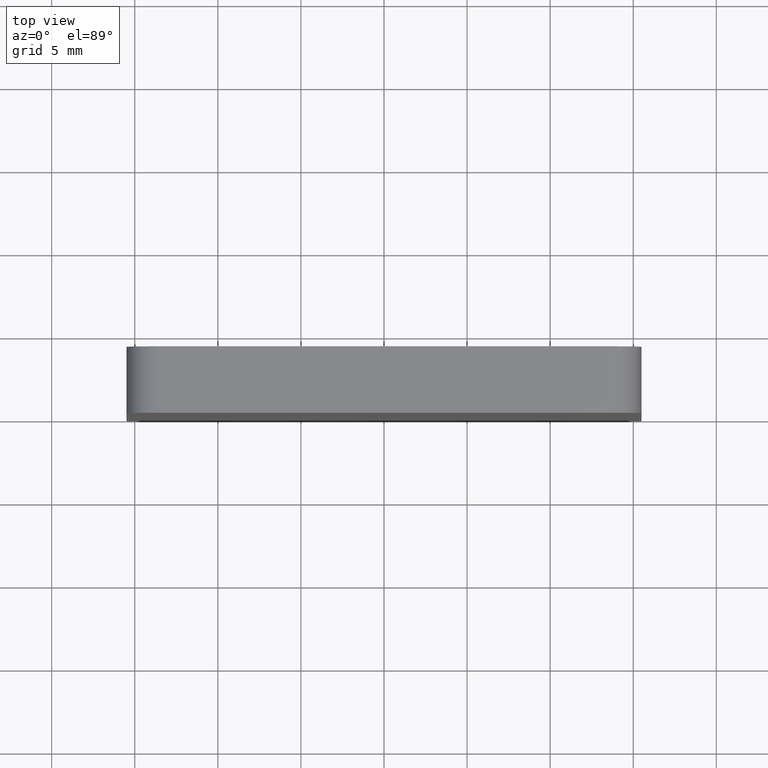
[diagram: clean part render]
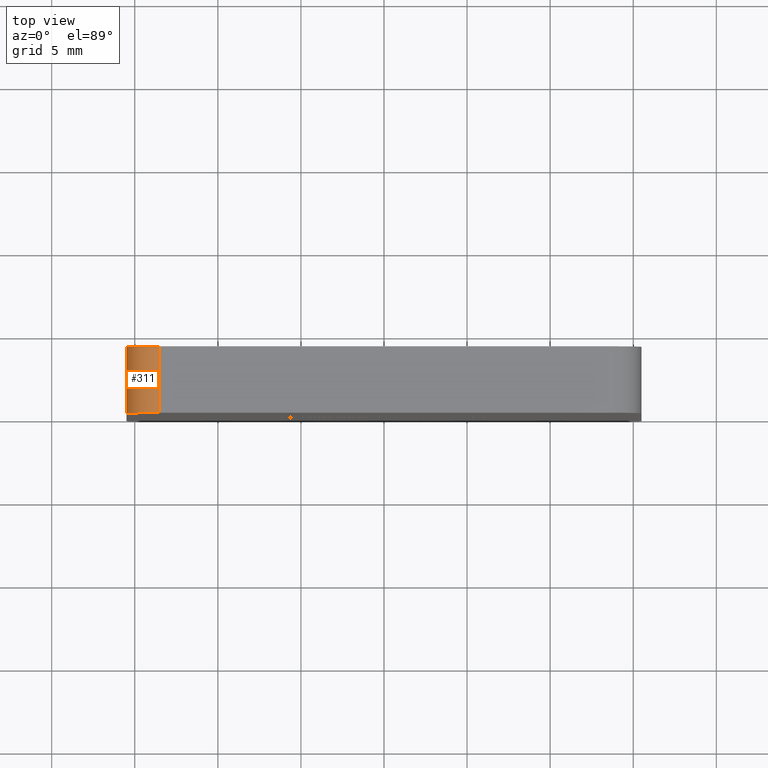
[diagram: same view with one face highlighted and labeled with its STEP entity id]
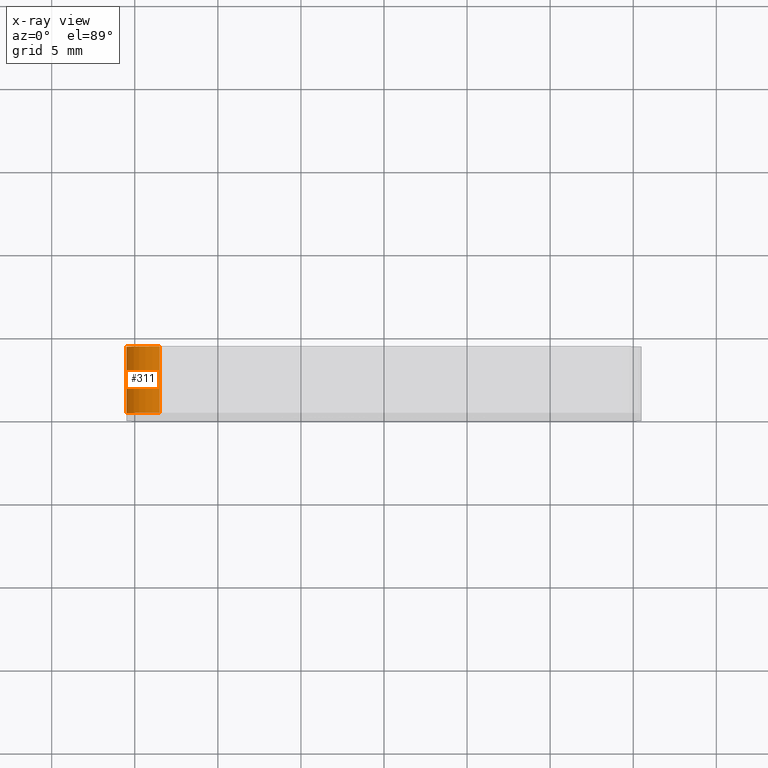
[diagram: x-ray of the same camera — body ghosted, the highlighted face saturated]
A machine part, top view. The second image highlights one B-rep face of the part: STEP entity #311.
The next image is the same camera in x-ray: the body ghosted, the highlighted face saturated — about 0% of this face is hidden behind the body in this view.
In plain terms, the highlighted cylindrical surface (edge-blend (fillet) strip) has radius 2 mm, axis along (0, -1, 0).
Its self-contained STEP definition (entity closure, byte-faithful):
#311 = ADVANCED_FACE ( 'NONE', ( #11861 ), #6643, .T. ) ;
#1104 = DIRECTION ( 'NONE',  ( 0.000000000000000000, 0.000000000000000000, -1.000000000000000000 ) ) ;
#2070 = EDGE_LOOP ( 'NONE', ( #10430, #13200, #14101, #3839 ) ) ;
#3083 = AXIS2_PLACEMENT_3D ( 'NONE', #14092, #12752, #3601 ) ;
#3302 = LINE ( 'NONE', #3679, #7355 ) ;
#3601 = DIRECTION ( 'NONE',  ( 0.000000000000000000, 0.000000000000000000, 1.000000000000000000 ) ) ;
#3679 = CARTESIAN_POINT ( 'NONE',  ( -13.49999999999999467, 4.000000000000000000, 15.50000000000000355 ) ) ;
#3839 = ORIENTED_EDGE ( 'NONE', *, *, #11516, .F. ) ;
#4610 = CARTESIAN_POINT ( 'NONE',  ( -13.49999999999999467, 0.000000000000000000, 15.50000000000000355 ) ) ;
#4989 = CARTESIAN_POINT ( 'NONE',  ( -13.49999999999999467, 4.000000000000000000, 13.50000000000000355 ) ) ;
#6272 = DIRECTION ( 'NONE',  ( 0.000000000000000000, 1.000000000000000000, 0.000000000000000000 ) ) ;
#6287 = DIRECTION ( 'NONE',  ( 0.000000000000000000, -1.000000000000000000, 0.000000000000000000 ) ) ;
#6324 = DIRECTION ( 'NONE',  ( 0.000000000000000000, 0.000000000000000000, 1.000000000000000000 ) ) ;
#6381 = CARTESIAN_POINT ( 'NONE',  ( -13.49999999999999467, 4.000000000000000000, 13.50000000000000355 ) ) ;
#6386 = CARTESIAN_POINT ( 'NONE',  ( -15.49999999999999467, 4.000000000000000000, 13.50000000000000533 ) ) ;
#6643 = CYLINDRICAL_SURFACE ( 'NONE', #13903, 2.000000000000000000 ) ;
#7355 = VECTOR ( 'NONE', #12679, 1000.000000000000000 ) ;
#8791 = AXIS2_PLACEMENT_3D ( 'NONE', #6381, #6272, #6324 ) ;
#9507 = VERTEX_POINT ( 'NONE', #9826 ) ;
#9672 = EDGE_CURVE ( 'NONE', #12935, #9507, #11179, .T. ) ;
#9826 = CARTESIAN_POINT ( 'NONE',  ( -15.49999999999999467, 4.000000000000000000, 13.50000000000000533 ) ) ;
#10430 = ORIENTED_EDGE ( 'NONE', *, *, #15653, .F. ) ;
#10795 = CIRCLE ( 'NONE', #3083, 2.000000000000000000 ) ;
#11179 = LINE ( 'NONE', #6386, #15780 ) ;
#11516 = EDGE_CURVE ( 'NONE', #12520, #13579, #3302, .T. ) ;
#11861 = FACE_OUTER_BOUND ( 'NONE', #2070, .T. ) ;
#11990 = CIRCLE ( 'NONE', #8791, 2.000000000000000000 ) ;
#12487 = CARTESIAN_POINT ( 'NONE',  ( -13.49999999999999467, 4.000000000000000000, 15.50000000000000355 ) ) ;
#12520 = VERTEX_POINT ( 'NONE', #12487 ) ;
#12679 = DIRECTION ( 'NONE',  ( 0.000000000000000000, -1.000000000000000000, 0.000000000000000000 ) ) ;
#12752 = DIRECTION ( 'NONE',  ( -0.000000000000000000, -1.000000000000000000, -0.000000000000000000 ) ) ;
#12935 = VERTEX_POINT ( 'NONE', #13386 ) ;
#13200 = ORIENTED_EDGE ( 'NONE', *, *, #9672, .F. ) ;
#13386 = CARTESIAN_POINT ( 'NONE',  ( -15.49999999999999467, 0.000000000000000000, 13.50000000000000533 ) ) ;
#13579 = VERTEX_POINT ( 'NONE', #4610 ) ;
#13903 = AXIS2_PLACEMENT_3D ( 'NONE', #4989, #6287, #1104 ) ;
#14092 = CARTESIAN_POINT ( 'NONE',  ( -13.49999999999999467, 0.000000000000000000, 13.50000000000000355 ) ) ;
#14101 = ORIENTED_EDGE ( 'NONE', *, *, #15214, .F. ) ;
#15214 = EDGE_CURVE ( 'NONE', #13579, #12935, #10795, .T. ) ;
#15653 = EDGE_CURVE ( 'NONE', #9507, #12520, #11990, .T. ) ;
#15780 = VECTOR ( 'NONE', #16505, 1000.000000000000000 ) ;
#16505 = DIRECTION ( 'NONE',  ( -0.000000000000000000, 1.000000000000000000, -0.000000000000000000 ) ) ;